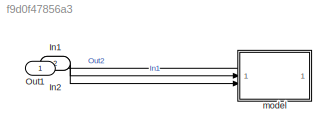
MODEL slx_f9d0f47856a3
KIND model
CONFIG AbsTol = auto
CONFIG EnableMultiTasking = off
CONFIG FixedStep = auto
CONFIG MaxStep = auto
CONFIG MinStep = auto
CONFIG RelTol = 1e-3
CONFIG SampleTimeConstraint = Unconstrained
CONFIG SolverName = FixedStepAuto
CONFIG StartTime = 0.0
CONFIG StopTime = 10.0
BLOCK [Inport] In1
  IconDisplay = Signal name
  OutDataTypeStr = double
BLOCK [Inport] In2
  IconDisplay = Signal name
  OutDataTypeStr = double
  Port = 2
BLOCK [Outport] Out1
  IconDisplay = Signal name
  OutDataTypeStr = double
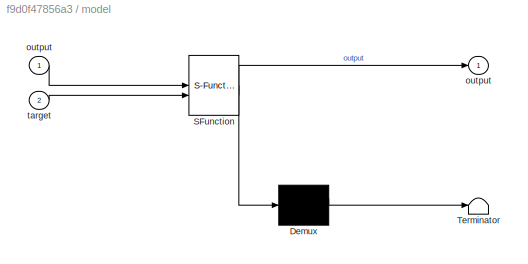
BLOCK [SubSystem] model
  ErrorFcn = Stateflow.Translate.translate
  LibrarySourceBlock = simulink/User-Defined\nFunctions/MATLAB Function
  PermitHierarchicalResolution = ExplicitOnly
  SFBlockType = MATLAB Function
  TreatAsAtomicUnit = on
BLOCK [Demux] model/ Demux 
  Outputs = 1
BLOCK [S-Function] model/ SFunction 
  EnableBusSupport = on
  FunctionName = sf_sfun
  PortCounts = [2 2]
  SFcnIsStateOwnerBlock = off
  SFunctionDeploymentMode = off
  Tag = Stateflow S-Function 2
BLOCK [Terminator] model/ Terminator 
BLOCK [Outport] model/output
BLOCK [Inport] model/output 
BLOCK [Inport] model/target
  Port = 2
LINE In1:1 -> model:1
LINE In2:1 -> model:2
LINE model:1 -> Out1:1
CHART model states=1 transitions=1
  STATE_LABEL 'eML_blk_kernel()'
  STATE_LABEL 'SCRIPT:\nfunction output  = pController(output, target)\n\tgain = 0.3\n\terr = output - target\n\toutput = output + (err * gain)\n'
CHART  states=0 transitions=0
